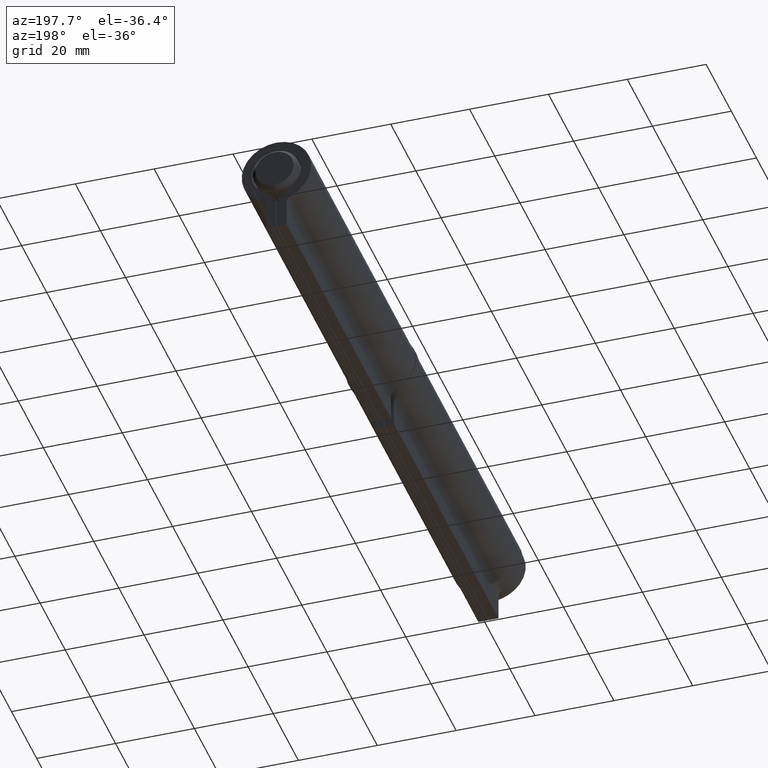
[diagram: clean part render]
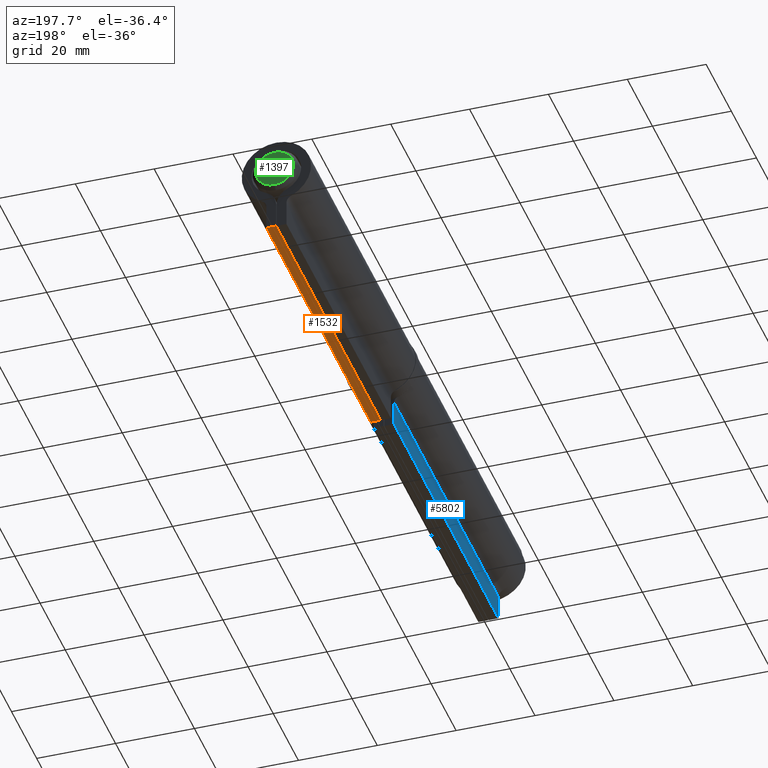
[diagram: same view with three faces highlighted in distinct colors, each labeled with its STEP entity id]
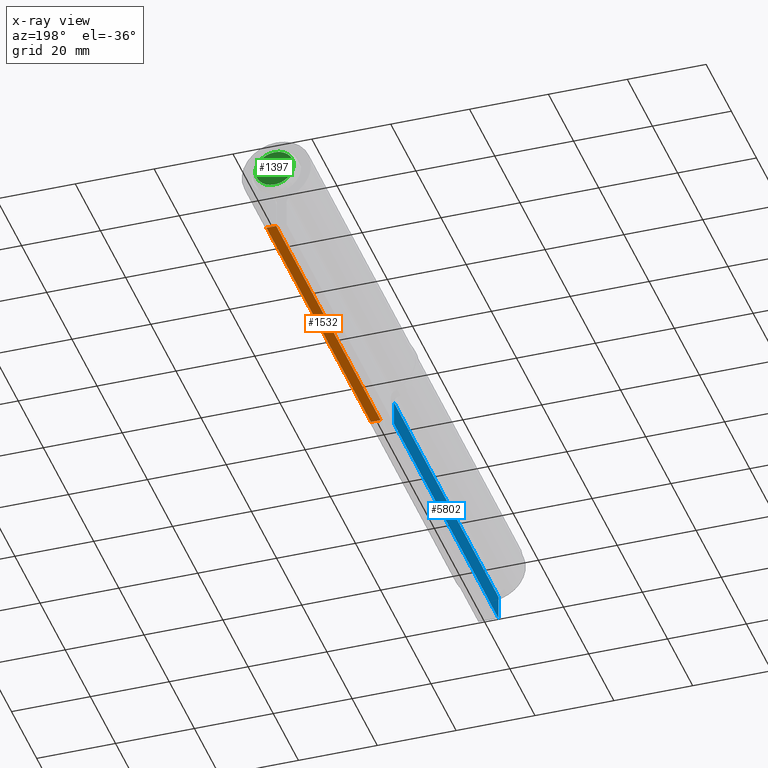
[diagram: x-ray of the same camera — body ghosted, the three highlighted faces saturated]
A machine part, auxiliary view with three faces highlighted in distinct colors.
The next image is the same camera in x-ray (body ghosted, the three faces saturated) — at least one of them is partly hidden behind the body in this view.
Their STEP definitions:

[orange] entity #1532 — the highlighted planar face has unit normal (0, 0, 1).
#291 = DIRECTION ( 'NONE',  ( 0.000000000000000000, -0.000000000000000000, 1.000000000000000000 ) ) ;
#387 = CARTESIAN_POINT ( 'NONE',  ( 2.550000000000000711, 41.50000000000000000, -16.19999999999999929 ) ) ;
#1404 = LINE ( 'NONE', #6307, #1742 ) ;
#1443 = DIRECTION ( 'NONE',  ( -1.000000000000000000, 0.000000000000000000, 0.000000000000000000 ) ) ;
#1452 = DIRECTION ( 'NONE',  ( 1.000000000000000000, 0.000000000000000000, -0.000000000000000000 ) ) ;
#1532 = ADVANCED_FACE ( 'NONE', ( #11776 ), #4678, .F. ) ;
#1662 = VERTEX_POINT ( 'NONE', #12249 ) ;
#1742 = VECTOR ( 'NONE', #12520, 1000.000000000000000 ) ;
#1967 = CARTESIAN_POINT ( 'NONE',  ( 2.550000000000000711, 41.50000000000000000, -16.19999999999999929 ) ) ;
#2058 = ORIENTED_EDGE ( 'NONE', *, *, #12792, .F. ) ;
#3160 = LINE ( 'NONE', #10894, #13597 ) ;
#3969 = DIRECTION ( 'NONE',  ( -0.000000000000000000, -1.000000000000000000, -0.000000000000000000 ) ) ;
#4678 = PLANE ( 'NONE',  #12162 ) ;
#5317 = CARTESIAN_POINT ( 'NONE',  ( 0.05000000000000035666, 41.50000000000000000, -16.19999999999999929 ) ) ;
#5461 = VERTEX_POINT ( 'NONE', #5317 ) ;
#5673 = VERTEX_POINT ( 'NONE', #11980 ) ;
#5818 = EDGE_CURVE ( 'NONE', #1662, #5461, #1404, .T. ) ;
#5885 = ORIENTED_EDGE ( 'NONE', *, *, #13206, .T. ) ;
#6307 = CARTESIAN_POINT ( 'NONE',  ( 2.550000000000000711, 41.50000000000000000, -16.19999999999999929 ) ) ;
#6507 = EDGE_LOOP ( 'NONE', ( #10925, #2058, #7849, #5885 ) ) ;
#7235 = DIRECTION ( 'NONE',  ( -0.000000000000000000, -1.000000000000000000, -0.000000000000000000 ) ) ;
#7849 = ORIENTED_EDGE ( 'NONE', *, *, #5818, .F. ) ;
#8359 = CARTESIAN_POINT ( 'NONE',  ( 0.05000000000000035666, 41.50000000000000000, -16.19999999999999929 ) ) ;
#8537 = EDGE_CURVE ( 'NONE', #5673, #8854, #3160, .T. ) ;
#8854 = VERTEX_POINT ( 'NONE', #9649 ) ;
#9083 = LINE ( 'NONE', #8359, #11534 ) ;
#9649 = CARTESIAN_POINT ( 'NONE',  ( 0.05000000000000035666, -41.50000000000000000, -16.19999999999999929 ) ) ;
#9696 = VECTOR ( 'NONE', #3969, 1000.000000000000000 ) ;
#10894 = CARTESIAN_POINT ( 'NONE',  ( 2.550000000000000711, -41.50000000000000000, -16.19999999999999929 ) ) ;
#10925 = ORIENTED_EDGE ( 'NONE', *, *, #8537, .T. ) ;
#11534 = VECTOR ( 'NONE', #7235, 1000.000000000000000 ) ;
#11776 = FACE_OUTER_BOUND ( 'NONE', #6507, .T. ) ;
#11980 = CARTESIAN_POINT ( 'NONE',  ( 2.550000000000000711, -41.50000000000000000, -16.19999999999999929 ) ) ;
#12162 = AXIS2_PLACEMENT_3D ( 'NONE', #387, #291, #1452 ) ;
#12249 = CARTESIAN_POINT ( 'NONE',  ( 2.550000000000000711, 41.50000000000000000, -16.19999999999999929 ) ) ;
#12520 = DIRECTION ( 'NONE',  ( -1.000000000000000000, 0.000000000000000000, 0.000000000000000000 ) ) ;
#12792 = EDGE_CURVE ( 'NONE', #5461, #8854, #9083, .T. ) ;
#13055 = LINE ( 'NONE', #1967, #9696 ) ;
#13206 = EDGE_CURVE ( 'NONE', #1662, #5673, #13055, .T. ) ;
#13597 = VECTOR ( 'NONE', #1443, 1000.000000000000000 ) ;

[blue] entity #5802 — the highlighted planar face has unit normal (1, 0, -0).
#56 = ORIENTED_EDGE ( 'NONE', *, *, #2012, .T. ) ;
#869 = EDGE_CURVE ( 'NONE', #9773, #13435, #11625, .T. ) ;
#1023 = DIRECTION ( 'NONE',  ( -1.354145915462211916E-16, 0.000000000000000000, -1.000000000000000000 ) ) ;
#1131 = VERTEX_POINT ( 'NONE', #3832 ) ;
#1132 = CARTESIAN_POINT ( 'NONE',  ( -2.550000000000000711, 41.50000000000000000, -16.19999999999999929 ) ) ;
#1388 = VECTOR ( 'NONE', #2829, 1000.000000000000000 ) ;
#2012 = EDGE_CURVE ( 'NONE', #9773, #1131, #10765, .T. ) ;
#2829 = DIRECTION ( 'NONE',  ( 1.354145915462211916E-16, 0.000000000000000000, 1.000000000000000000 ) ) ;
#3288 = LINE ( 'NONE', #3470, #11389 ) ;
#3299 = CARTESIAN_POINT ( 'NONE',  ( -2.549999999999999378, 41.50000000000000000, -9.794769012079866499 ) ) ;
#3470 = CARTESIAN_POINT ( 'NONE',  ( -2.550000000000000711, -41.50000000000000000, -16.19999999999999929 ) ) ;
#3668 = ORIENTED_EDGE ( 'NONE', *, *, #13555, .F. ) ;
#3832 = CARTESIAN_POINT ( 'NONE',  ( -2.550000000000000711, -41.50000000000000000, -16.19999999999999929 ) ) ;
#5081 = LINE ( 'NONE', #7746, #10377 ) ;
#5802 = ADVANCED_FACE ( 'NONE', ( #8190 ), #10547, .F. ) ;
#6185 = DIRECTION ( 'NONE',  ( 1.000000000000000000, 0.000000000000000000, -1.354145915462211916E-16 ) ) ;
#6893 = CARTESIAN_POINT ( 'NONE',  ( -2.549999999999999378, -41.50000000000000000, -9.794769012079866499 ) ) ;
#7260 = CARTESIAN_POINT ( 'NONE',  ( -2.550000000000000711, 41.50000000000000000, -16.19999999999999929 ) ) ;
#7746 = CARTESIAN_POINT ( 'NONE',  ( -2.549999999999999378, 41.50000000000000000, -9.794769012079866499 ) ) ;
#8092 = CARTESIAN_POINT ( 'NONE',  ( -2.550000000000000711, 41.50000000000000000, -16.19999999999999929 ) ) ;
#8190 = FACE_OUTER_BOUND ( 'NONE', #11927, .T. ) ;
#9179 = DIRECTION ( 'NONE',  ( -0.000000000000000000, -1.000000000000000000, -0.000000000000000000 ) ) ;
#9229 = CARTESIAN_POINT ( 'NONE',  ( -2.550000000000000711, 41.50000000000000000, -16.19999999999999929 ) ) ;
#9614 = VECTOR ( 'NONE', #9179, 1000.000000000000000 ) ;
#9773 = VERTEX_POINT ( 'NONE', #1132 ) ;
#9838 = ORIENTED_EDGE ( 'NONE', *, *, #10525, .T. ) ;
#10377 = VECTOR ( 'NONE', #13307, 1000.000000000000000 ) ;
#10525 = EDGE_CURVE ( 'NONE', #1131, #13594, #3288, .T. ) ;
#10547 = PLANE ( 'NONE',  #13178 ) ;
#10765 = LINE ( 'NONE', #9229, #9614 ) ;
#11389 = VECTOR ( 'NONE', #12902, 1000.000000000000000 ) ;
#11625 = LINE ( 'NONE', #8092, #1388 ) ;
#11927 = EDGE_LOOP ( 'NONE', ( #9838, #3668, #12443, #56 ) ) ;
#12443 = ORIENTED_EDGE ( 'NONE', *, *, #869, .F. ) ;
#12902 = DIRECTION ( 'NONE',  ( 1.354145915462211916E-16, 0.000000000000000000, 1.000000000000000000 ) ) ;
#13178 = AXIS2_PLACEMENT_3D ( 'NONE', #7260, #6185, #1023 ) ;
#13307 = DIRECTION ( 'NONE',  ( -0.000000000000000000, -1.000000000000000000, -0.000000000000000000 ) ) ;
#13435 = VERTEX_POINT ( 'NONE', #3299 ) ;
#13555 = EDGE_CURVE ( 'NONE', #13435, #13594, #5081, .T. ) ;
#13594 = VERTEX_POINT ( 'NONE', #6893 ) ;

[green] entity #1397 — the highlighted planar face has unit normal (0, -1, 0).
#194 = DIRECTION ( 'NONE',  ( 0.000000000000000000, -1.000000000000000000, 0.000000000000000000 ) ) ;
#1397 = ADVANCED_FACE ( 'NONE', ( #12481 ), #9573, .F. ) ;
#2233 = ORIENTED_EDGE ( 'NONE', *, *, #9288, .T. ) ;
#2684 = AXIS2_PLACEMENT_3D ( 'NONE', #7443, #194, #6550 ) ;
#4574 = DIRECTION ( 'NONE',  ( -0.000000000000000000, 1.000000000000000000, -0.000000000000000000 ) ) ;
#5732 = VERTEX_POINT ( 'NONE', #13530 ) ;
#5774 = CARTESIAN_POINT ( 'NONE',  ( 1.812477262738082717E-14, 87.00000000000000000, 0.000000000000000000 ) ) ;
#5791 = CIRCLE ( 'NONE', #12647, 4.849999999999965894 ) ;
#6550 = DIRECTION ( 'NONE',  ( 0.000000000000000000, -0.000000000000000000, -1.000000000000000000 ) ) ;
#7443 = CARTESIAN_POINT ( 'NONE',  ( 5.850000000000017408, 87.00000000000000000, 0.000000000000000000 ) ) ;
#9288 = EDGE_CURVE ( 'NONE', #5732, #5732, #5791, .T. ) ;
#9573 = PLANE ( 'NONE',  #2684 ) ;
#9877 = DIRECTION ( 'NONE',  ( 0.000000000000000000, 0.000000000000000000, -1.000000000000000000 ) ) ;
#11919 = EDGE_LOOP ( 'NONE', ( #2233 ) ) ;
#12481 = FACE_OUTER_BOUND ( 'NONE', #11919, .T. ) ;
#12647 = AXIS2_PLACEMENT_3D ( 'NONE', #5774, #4574, #9877 ) ;
#13530 = CARTESIAN_POINT ( 'NONE',  ( 1.812477262738082717E-14, 87.00000000000000000, -4.849999999999965894 ) ) ;